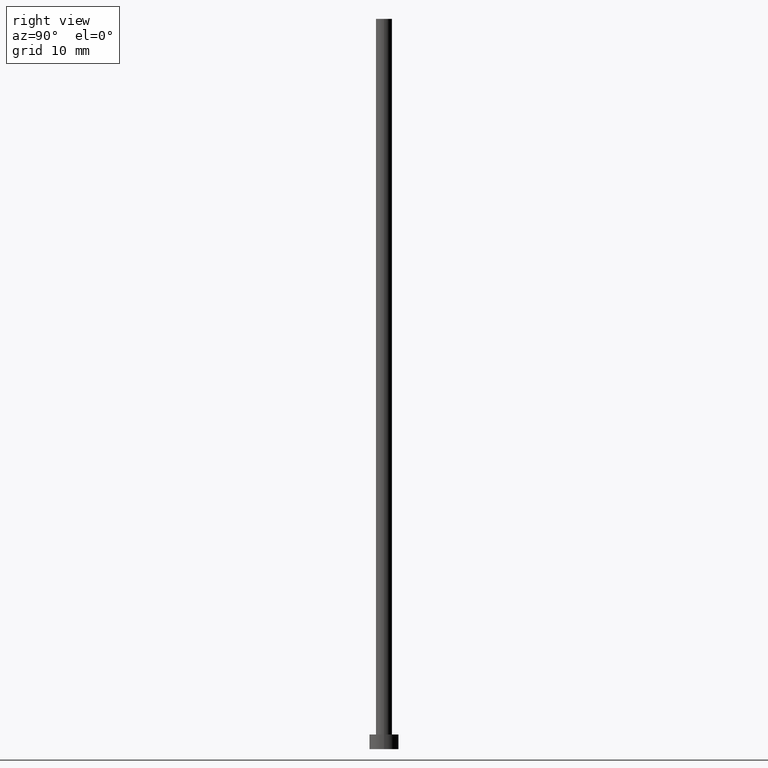
[diagram: clean part render]
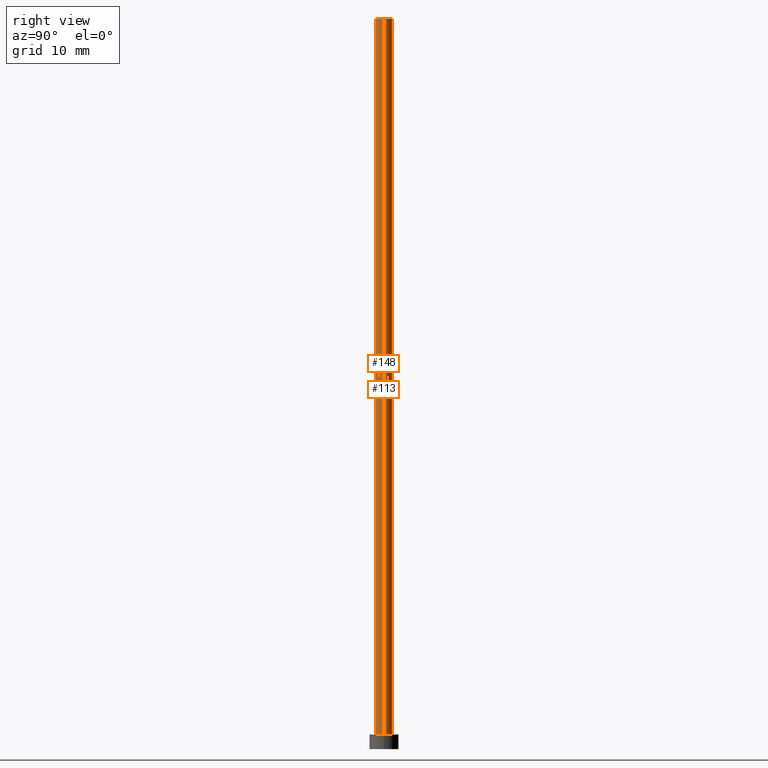
[diagram: same view with one multi-face feature highlighted, each face labeled with its STEP entity id]
A machine part, right view. The highlighted faces form ONE feature: a constant-radius fillet chain: 2 tangent blend faces with common blend radius 1.1 mm. The faces share edges in the B-rep.
Their STEP definitions:
[1] entity #113 (Cylinder):
#1 = CARTESIAN_POINT ( 'NONE',  ( 1.100000000000000089, 1.347111479062088503E-16, 2.000000000000000000 ) ) ;
#9 = EDGE_CURVE ( 'NONE', #164, #171, #191, .T. ) ;
#17 = AXIS2_PLACEMENT_3D ( 'NONE', #135, #90, #186 ) ;
#21 = CIRCLE ( 'NONE', #166, 1.100000000000000089 ) ;
#22 = DIRECTION ( 'NONE',  ( -0.000000000000000000, -0.000000000000000000, -1.000000000000000000 ) ) ;
#33 = CARTESIAN_POINT ( 'NONE',  ( 0.000000000000000000, 0.000000000000000000, 2.000000000000000000 ) ) ;
#39 = EDGE_CURVE ( 'NONE', #66, #164, #21, .T. ) ;
#46 = VECTOR ( 'NONE', #22, 1000.000000000000000 ) ;
#53 = CARTESIAN_POINT ( 'NONE',  ( 1.100000000000000089, 1.347111479062088503E-16, 100.0000000000000000 ) ) ;
#54 = CARTESIAN_POINT ( 'NONE',  ( -1.100000000000000089, 0.000000000000000000, 100.0000000000000000 ) ) ;
#55 = DIRECTION ( 'NONE',  ( 0.000000000000000000, 0.000000000000000000, 1.000000000000000000 ) ) ;
#66 = VERTEX_POINT ( 'NONE', #53 ) ;
#74 = DIRECTION ( 'NONE',  ( -0.000000000000000000, -0.000000000000000000, -1.000000000000000000 ) ) ;
#90 = DIRECTION ( 'NONE',  ( -0.000000000000000000, -0.000000000000000000, -1.000000000000000000 ) ) ;
#103 = ORIENTED_EDGE ( 'NONE', *, *, #105, .T. ) ;
#105 = EDGE_CURVE ( 'NONE', #225, #171, #216, .T. ) ;
#107 = EDGE_LOOP ( 'NONE', ( #200, #217, #103, #141 ) ) ;
#112 = FACE_OUTER_BOUND ( 'NONE', #107, .T. ) ;
#113 = ADVANCED_FACE ( 'NONE', ( #112 ), #206, .T. ) ;
#120 = CARTESIAN_POINT ( 'NONE',  ( 1.100000000000000089, 1.347111479062088503E-16, 100.0000000000000000 ) ) ;
#135 = CARTESIAN_POINT ( 'NONE',  ( 0.000000000000000000, 0.000000000000000000, 100.0000000000000000 ) ) ;
#141 = ORIENTED_EDGE ( 'NONE', *, *, #9, .F. ) ;
#142 = AXIS2_PLACEMENT_3D ( 'NONE', #33, #55, #252 ) ;
#145 = DIRECTION ( 'NONE',  ( 1.000000000000000000, 0.000000000000000000, 0.000000000000000000 ) ) ;
#164 = VERTEX_POINT ( 'NONE', #54 ) ;
#166 = AXIS2_PLACEMENT_3D ( 'NONE', #187, #250, #145 ) ;
#171 = VERTEX_POINT ( 'NONE', #189 ) ;
#186 = DIRECTION ( 'NONE',  ( -1.000000000000000000, 0.000000000000000000, 0.000000000000000000 ) ) ;
#187 = CARTESIAN_POINT ( 'NONE',  ( 0.000000000000000000, 0.000000000000000000, 100.0000000000000000 ) ) ;
#189 = CARTESIAN_POINT ( 'NONE',  ( -1.100000000000000089, 0.000000000000000000, 2.000000000000000000 ) ) ;
#191 = LINE ( 'NONE', #248, #254 ) ;
#200 = ORIENTED_EDGE ( 'NONE', *, *, #39, .F. ) ;
#206 = CYLINDRICAL_SURFACE ( 'NONE', #17, 1.100000000000000089 ) ;
#212 = LINE ( 'NONE', #120, #46 ) ;
#216 = CIRCLE ( 'NONE', #142, 1.100000000000000089 ) ;
#217 = ORIENTED_EDGE ( 'NONE', *, *, #249, .T. ) ;
#225 = VERTEX_POINT ( 'NONE', #1 ) ;
#248 = CARTESIAN_POINT ( 'NONE',  ( -1.100000000000000089, 0.000000000000000000, 100.0000000000000000 ) ) ;
#249 = EDGE_CURVE ( 'NONE', #66, #225, #212, .T. ) ;
#250 = DIRECTION ( 'NONE',  ( 0.000000000000000000, 0.000000000000000000, 1.000000000000000000 ) ) ;
#252 = DIRECTION ( 'NONE',  ( 1.000000000000000000, 0.000000000000000000, 0.000000000000000000 ) ) ;
#254 = VECTOR ( 'NONE', #74, 1000.000000000000000 ) ;
[2] entity #148 (Cylinder):
#1 = CARTESIAN_POINT ( 'NONE',  ( 1.100000000000000089, 1.347111479062088503E-16, 2.000000000000000000 ) ) ;
#6 = ORIENTED_EDGE ( 'NONE', *, *, #249, .F. ) ;
#8 = DIRECTION ( 'NONE',  ( -0.000000000000000000, -0.000000000000000000, -1.000000000000000000 ) ) ;
#9 = EDGE_CURVE ( 'NONE', #164, #171, #191, .T. ) ;
#12 = CIRCLE ( 'NONE', #80, 1.100000000000000089 ) ;
#13 = CARTESIAN_POINT ( 'NONE',  ( 0.000000000000000000, 0.000000000000000000, 2.000000000000000000 ) ) ;
#22 = DIRECTION ( 'NONE',  ( -0.000000000000000000, -0.000000000000000000, -1.000000000000000000 ) ) ;
#26 = AXIS2_PLACEMENT_3D ( 'NONE', #246, #8, #151 ) ;
#29 = EDGE_CURVE ( 'NONE', #171, #225, #12, .T. ) ;
#36 = ORIENTED_EDGE ( 'NONE', *, *, #9, .T. ) ;
#40 = DIRECTION ( 'NONE',  ( 1.000000000000000000, 0.000000000000000000, 0.000000000000000000 ) ) ;
#46 = VECTOR ( 'NONE', #22, 1000.000000000000000 ) ;
#53 = CARTESIAN_POINT ( 'NONE',  ( 1.100000000000000089, 1.347111479062088503E-16, 100.0000000000000000 ) ) ;
#54 = CARTESIAN_POINT ( 'NONE',  ( -1.100000000000000089, 0.000000000000000000, 100.0000000000000000 ) ) ;
#66 = VERTEX_POINT ( 'NONE', #53 ) ;
#74 = DIRECTION ( 'NONE',  ( -0.000000000000000000, -0.000000000000000000, -1.000000000000000000 ) ) ;
#75 = DIRECTION ( 'NONE',  ( 1.000000000000000000, 0.000000000000000000, 0.000000000000000000 ) ) ;
#77 = FACE_OUTER_BOUND ( 'NONE', #178, .T. ) ;
#80 = AXIS2_PLACEMENT_3D ( 'NONE', #13, #172, #75 ) ;
#120 = CARTESIAN_POINT ( 'NONE',  ( 1.100000000000000089, 1.347111479062088503E-16, 100.0000000000000000 ) ) ;
#148 = ADVANCED_FACE ( 'NONE', ( #77 ), #210, .T. ) ;
#151 = DIRECTION ( 'NONE',  ( -1.000000000000000000, 0.000000000000000000, 0.000000000000000000 ) ) ;
#155 = CARTESIAN_POINT ( 'NONE',  ( 0.000000000000000000, 0.000000000000000000, 100.0000000000000000 ) ) ;
#164 = VERTEX_POINT ( 'NONE', #54 ) ;
#171 = VERTEX_POINT ( 'NONE', #189 ) ;
#172 = DIRECTION ( 'NONE',  ( 0.000000000000000000, 0.000000000000000000, 1.000000000000000000 ) ) ;
#178 = EDGE_LOOP ( 'NONE', ( #6, #239, #36, #243 ) ) ;
#189 = CARTESIAN_POINT ( 'NONE',  ( -1.100000000000000089, 0.000000000000000000, 2.000000000000000000 ) ) ;
#191 = LINE ( 'NONE', #248, #254 ) ;
#193 = AXIS2_PLACEMENT_3D ( 'NONE', #155, #255, #40 ) ;
#198 = CIRCLE ( 'NONE', #193, 1.100000000000000089 ) ;
#210 = CYLINDRICAL_SURFACE ( 'NONE', #26, 1.100000000000000089 ) ;
#212 = LINE ( 'NONE', #120, #46 ) ;
#225 = VERTEX_POINT ( 'NONE', #1 ) ;
#239 = ORIENTED_EDGE ( 'NONE', *, *, #240, .F. ) ;
#240 = EDGE_CURVE ( 'NONE', #164, #66, #198, .T. ) ;
#243 = ORIENTED_EDGE ( 'NONE', *, *, #29, .T. ) ;
#246 = CARTESIAN_POINT ( 'NONE',  ( 0.000000000000000000, 0.000000000000000000, 100.0000000000000000 ) ) ;
#248 = CARTESIAN_POINT ( 'NONE',  ( -1.100000000000000089, 0.000000000000000000, 100.0000000000000000 ) ) ;
#249 = EDGE_CURVE ( 'NONE', #66, #225, #212, .T. ) ;
#254 = VECTOR ( 'NONE', #74, 1000.000000000000000 ) ;
#255 = DIRECTION ( 'NONE',  ( 0.000000000000000000, 0.000000000000000000, 1.000000000000000000 ) ) ;